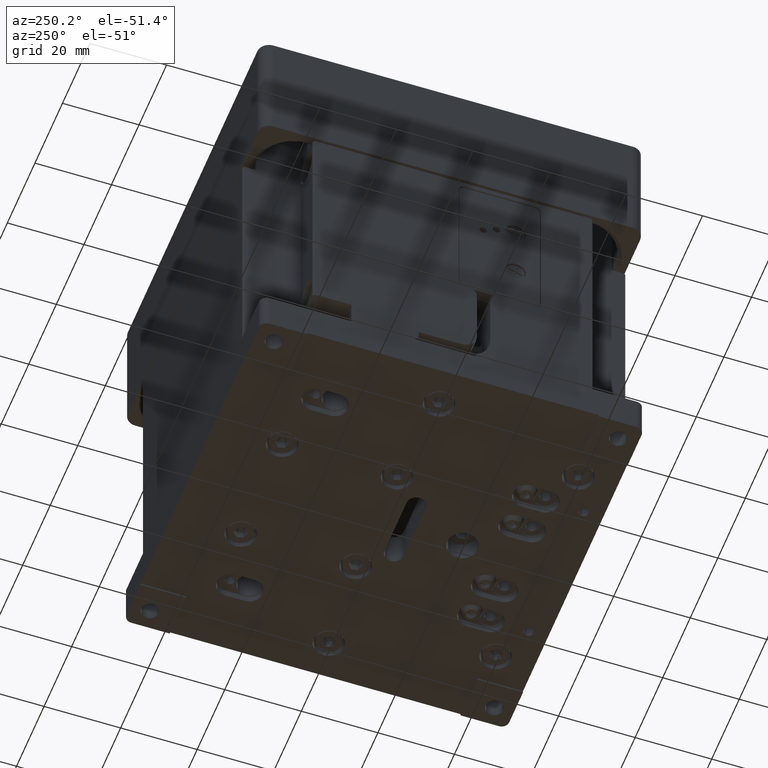
[diagram: clean part render]
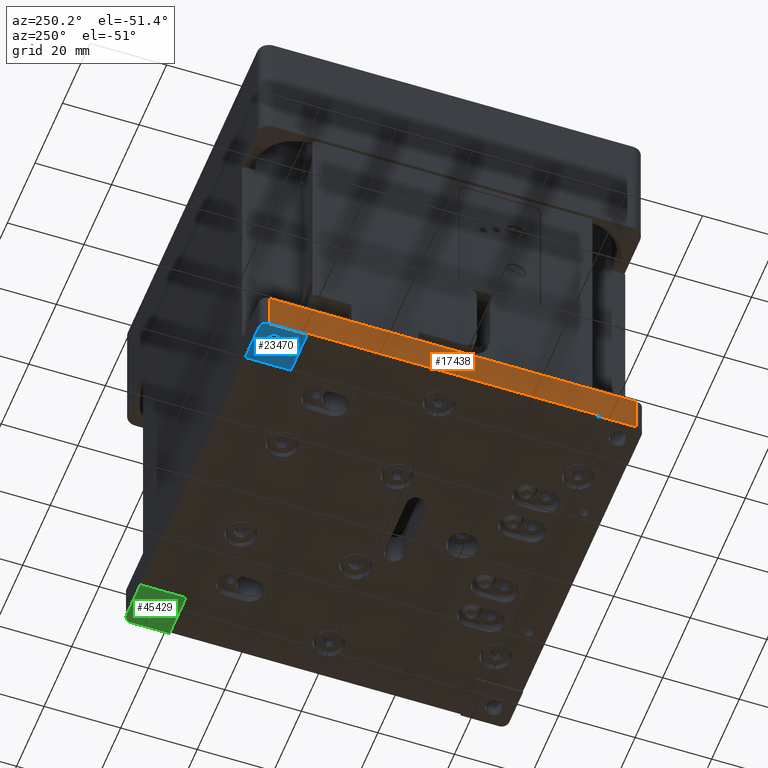
[diagram: same view with three faces highlighted in distinct colors, each labeled with its STEP entity id]
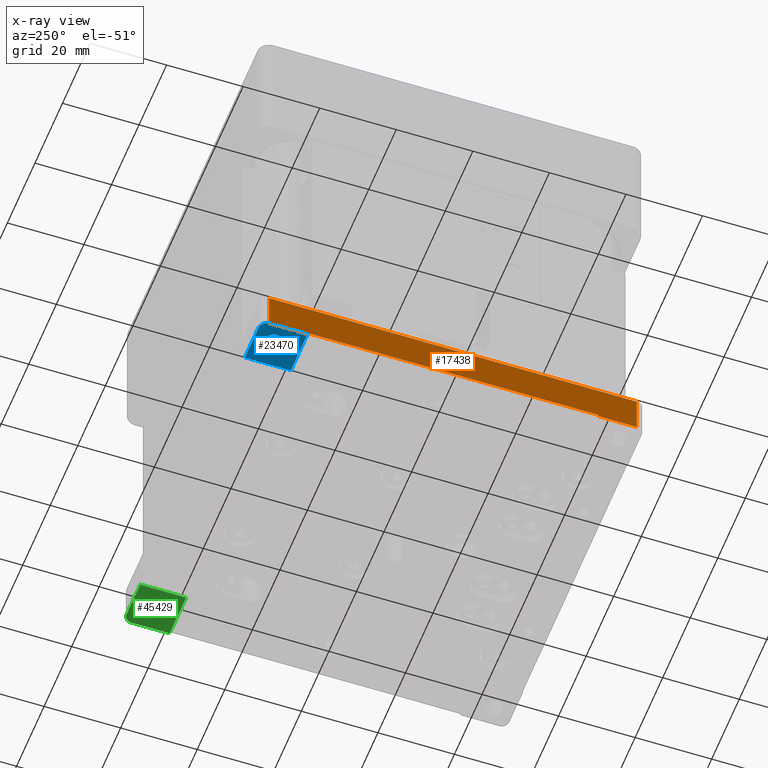
[diagram: x-ray of the same camera — body ghosted, the three highlighted faces saturated]
A machine part, auxiliary view with three faces highlighted in distinct colors.
The next image is the same camera in x-ray (body ghosted, the three faces saturated) — at least one of them is partly hidden behind the body in this view.
Their STEP definitions:

[orange] entity #17438 — the highlighted planar face has unit normal (-1, -0, 0).
#1926 = CARTESIAN_POINT ( 'NONE',  ( -49.99999999999998579, -38.00000000000000711, -9.500000000000000000 ) ) ;
#1951 = VECTOR ( 'NONE', #21273, 1000.000000000000000 ) ;
#2547 = VERTEX_POINT ( 'NONE', #22492 ) ;
#2884 = EDGE_CURVE ( 'NONE', #30680, #13785, #13054, .T. ) ;
#3493 = CARTESIAN_POINT ( 'NONE',  ( -50.00000000000000711, 38.00000000000000711, -10.00000000000000000 ) ) ;
#5359 = CARTESIAN_POINT ( 'NONE',  ( -50.00000000000000000, 50.00000000000000000, -9.500000000000000000 ) ) ;
#5364 = EDGE_CURVE ( 'NONE', #36289, #27895, #12210, .T. ) ;
#6043 = LINE ( 'NONE', #31211, #8949 ) ;
#6685 = VECTOR ( 'NONE', #24575, 1000.000000000000000 ) ;
#6935 = CARTESIAN_POINT ( 'NONE',  ( -50.00000000000000000, 0.000000000000000000, 0.000000000000000000 ) ) ;
#7404 = ORIENTED_EDGE ( 'NONE', *, *, #10058, .T. ) ;
#8069 = LINE ( 'NONE', #32315, #45471 ) ;
#8892 = EDGE_CURVE ( 'NONE', #30680, #36289, #13919, .T. ) ;
#8949 = VECTOR ( 'NONE', #16864, 1000.000000000000000 ) ;
#9454 = ORIENTED_EDGE ( 'NONE', *, *, #38707, .T. ) ;
#10058 = EDGE_CURVE ( 'NONE', #2547, #18191, #8069, .T. ) ;
#10232 = CARTESIAN_POINT ( 'NONE',  ( -49.99999999999999289, 38.00000000000000711, -10.00000000000000000 ) ) ;
#10870 = DIRECTION ( 'NONE',  ( -0.000000000000000000, -0.000000000000000000, -1.000000000000000000 ) ) ;
#11513 = CARTESIAN_POINT ( 'NONE',  ( -50.00000000000000000, 50.00000000000000000, -10.00000000000000000 ) ) ;
#12046 = VECTOR ( 'NONE', #44720, 1000.000000000000000 ) ;
#12210 = LINE ( 'NONE', #11513, #12046 ) ;
#12359 = EDGE_CURVE ( 'NONE', #13785, #21955, #33608, .T. ) ;
#13054 = LINE ( 'NONE', #6935, #1951 ) ;
#13084 = EDGE_LOOP ( 'NONE', ( #25176, #9454, #7404, #33421, #18010, #16021, #39313, #17874 ) ) ;
#13708 = CARTESIAN_POINT ( 'NONE',  ( -50.00000000000000000, 48.00000000000000000, -9.500000000000000000 ) ) ;
#13785 = VERTEX_POINT ( 'NONE', #26002 ) ;
#13919 = LINE ( 'NONE', #13708, #37195 ) ;
#16021 = ORIENTED_EDGE ( 'NONE', *, *, #12359, .F. ) ;
#16827 = CARTESIAN_POINT ( 'NONE',  ( -49.99999999999998579, -47.99999999999997158, -9.500000000000000000 ) ) ;
#16864 = DIRECTION ( 'NONE',  ( 0.000000000000000000, -0.000000000000000000, -1.000000000000000000 ) ) ;
#17438 = ADVANCED_FACE ( 'NONE', ( #27230 ), #34061, .T. ) ;
#17874 = ORIENTED_EDGE ( 'NONE', *, *, #8892, .T. ) ;
#18010 = ORIENTED_EDGE ( 'NONE', *, *, #32484, .T. ) ;
#18191 = VERTEX_POINT ( 'NONE', #1926 ) ;
#19926 = DIRECTION ( 'NONE',  ( -1.000000000000000000, -1.387778780781445922E-16, 0.000000000000000000 ) ) ;
#20400 = DIRECTION ( 'NONE',  ( 1.387778780781445922E-16, -1.000000000000000000, 0.000000000000000000 ) ) ;
#21273 = DIRECTION ( 'NONE',  ( -0.000000000000000000, -1.000000000000000000, 0.000000000000000000 ) ) ;
#21742 = CARTESIAN_POINT ( 'NONE',  ( -49.99999999999998579, -47.99999999999997868, -10.00000000000000000 ) ) ;
#21955 = VERTEX_POINT ( 'NONE', #21742 ) ;
#22308 = DIRECTION ( 'NONE',  ( -0.000000000000000000, -0.000000000000000000, -1.000000000000000000 ) ) ;
#22492 = CARTESIAN_POINT ( 'NONE',  ( -50.00000000000000000, 38.00000000000000711, -9.500000000000000000 ) ) ;
#24575 = DIRECTION ( 'NONE',  ( 0.000000000000000000, -0.000000000000000000, 1.000000000000000000 ) ) ;
#25176 = ORIENTED_EDGE ( 'NONE', *, *, #5364, .T. ) ;
#25658 = LINE ( 'NONE', #29420, #30842 ) ;
#26002 = CARTESIAN_POINT ( 'NONE',  ( -49.99999999999999289, -47.99999999999997868, 0.000000000000000000 ) ) ;
#27230 = FACE_OUTER_BOUND ( 'NONE', #13084, .T. ) ;
#27895 = VERTEX_POINT ( 'NONE', #3493 ) ;
#29420 = CARTESIAN_POINT ( 'NONE',  ( -50.00000000000000000, 50.00000000000000000, -10.00000000000000000 ) ) ;
#29586 = CARTESIAN_POINT ( 'NONE',  ( -50.00000000000000000, 48.00000000000000000, -10.00000000000000000 ) ) ;
#29888 = CARTESIAN_POINT ( 'NONE',  ( -50.00000000000000000, 48.00000000000000000, 0.000000000000000000 ) ) ;
#30680 = VERTEX_POINT ( 'NONE', #29888 ) ;
#30842 = VECTOR ( 'NONE', #43813, 1000.000000000000000 ) ;
#31211 = CARTESIAN_POINT ( 'NONE',  ( -49.99999999999997868, -38.00000000000000711, -10.00000000000000000 ) ) ;
#31893 = LINE ( 'NONE', #10232, #6685 ) ;
#32315 = CARTESIAN_POINT ( 'NONE',  ( -50.00000000000000000, 50.00000000000000000, -9.500000000000000000 ) ) ;
#32484 = EDGE_CURVE ( 'NONE', #40293, #21955, #25658, .T. ) ;
#33421 = ORIENTED_EDGE ( 'NONE', *, *, #39956, .T. ) ;
#33608 = LINE ( 'NONE', #16827, #40813 ) ;
#34061 = PLANE ( 'NONE',  #39545 ) ;
#36289 = VERTEX_POINT ( 'NONE', #29586 ) ;
#36798 = DIRECTION ( 'NONE',  ( 1.387778780781445922E-16, -1.000000000000000000, 0.000000000000000000 ) ) ;
#37195 = VECTOR ( 'NONE', #10870, 1000.000000000000000 ) ;
#38003 = CARTESIAN_POINT ( 'NONE',  ( -49.99999999999998579, -38.00000000000000711, -10.00000000000000000 ) ) ;
#38707 = EDGE_CURVE ( 'NONE', #27895, #2547, #31893, .T. ) ;
#39313 = ORIENTED_EDGE ( 'NONE', *, *, #2884, .F. ) ;
#39545 = AXIS2_PLACEMENT_3D ( 'NONE', #5359, #19926, #20400 ) ;
#39956 = EDGE_CURVE ( 'NONE', #18191, #40293, #6043, .T. ) ;
#40293 = VERTEX_POINT ( 'NONE', #38003 ) ;
#40813 = VECTOR ( 'NONE', #22308, 1000.000000000000000 ) ;
#43813 = DIRECTION ( 'NONE',  ( 1.387778780781445922E-16, -1.000000000000000000, 0.000000000000000000 ) ) ;
#44720 = DIRECTION ( 'NONE',  ( 1.387778780781445922E-16, -1.000000000000000000, 0.000000000000000000 ) ) ;
#45471 = VECTOR ( 'NONE', #36798, 1000.000000000000000 ) ;

[blue] entity #23470 — the highlighted planar face has unit normal (0, 0, -1).
#475 = CIRCLE ( 'NONE', #37339, 2.000000000000001776 ) ;
#597 = AXIS2_PLACEMENT_3D ( 'NONE', #28100, #9313, #42270 ) ;
#2437 = ORIENTED_EDGE ( 'NONE', *, *, #21754, .T. ) ;
#2502 = ORIENTED_EDGE ( 'NONE', *, *, #5364, .F. ) ;
#3493 = CARTESIAN_POINT ( 'NONE',  ( -50.00000000000000711, 38.00000000000000711, -10.00000000000000000 ) ) ;
#4338 = PLANE ( 'NONE',  #30226 ) ;
#4391 = ORIENTED_EDGE ( 'NONE', *, *, #34781, .T. ) ;
#5364 = EDGE_CURVE ( 'NONE', #36289, #27895, #12210, .T. ) ;
#8398 = EDGE_LOOP ( 'NONE', ( #40904, #2437 ) ) ;
#8874 = AXIS2_PLACEMENT_3D ( 'NONE', #27906, #42297, #38737 ) ;
#8940 = CARTESIAN_POINT ( 'NONE',  ( -48.00000000000000000, 48.00000000000000000, -10.00000000000000000 ) ) ;
#9313 = DIRECTION ( 'NONE',  ( -0.000000000000000000, -0.000000000000000000, 1.000000000000000000 ) ) ;
#11513 = CARTESIAN_POINT ( 'NONE',  ( -50.00000000000000000, 50.00000000000000000, -10.00000000000000000 ) ) ;
#11597 = VERTEX_POINT ( 'NONE', #17208 ) ;
#11900 = EDGE_LOOP ( 'NONE', ( #27057, #37409, #4391, #20156, #2502 ) ) ;
#12046 = VECTOR ( 'NONE', #44720, 1000.000000000000000 ) ;
#12210 = LINE ( 'NONE', #11513, #12046 ) ;
#14348 = VECTOR ( 'NONE', #31719, 1000.000000000000000 ) ;
#17208 = CARTESIAN_POINT ( 'NONE',  ( -48.00000000000000000, 50.00000000000000000, -10.00000000000000000 ) ) ;
#17365 = LINE ( 'NONE', #17587, #14348 ) ;
#17587 = CARTESIAN_POINT ( 'NONE',  ( -50.00000000000000000, 50.00000000000000000, -10.00000000000000000 ) ) ;
#18697 = FACE_BOUND ( 'NONE', #8398, .T. ) ;
#18875 = CARTESIAN_POINT ( 'NONE',  ( -37.99999999999999289, 38.00000000000000711, -10.00000000000000000 ) ) ;
#20156 = ORIENTED_EDGE ( 'NONE', *, *, #45637, .T. ) ;
#20648 = VERTEX_POINT ( 'NONE', #25487 ) ;
#21582 = DIRECTION ( 'NONE',  ( -1.000000000000000000, 0.000000000000000000, -0.000000000000000000 ) ) ;
#21754 = EDGE_CURVE ( 'NONE', #36062, #23785, #46495, .T. ) ;
#22901 = EDGE_CURVE ( 'NONE', #20648, #11597, #17365, .T. ) ;
#23470 = ADVANCED_FACE ( 'NONE', ( #18697, #29278 ), #4338, .T. ) ;
#23785 = VERTEX_POINT ( 'NONE', #38897 ) ;
#23968 = DIRECTION ( 'NONE',  ( 0.000000000000000000, 0.000000000000000000, 1.000000000000000000 ) ) ;
#24754 = CARTESIAN_POINT ( 'NONE',  ( -37.99999999999999289, 0.000000000000000000, -10.00000000000000000 ) ) ;
#25487 = CARTESIAN_POINT ( 'NONE',  ( -37.99999999999999289, 50.00000000000000711, -10.00000000000000000 ) ) ;
#25755 = DIRECTION ( 'NONE',  ( 0.000000000000000000, 0.000000000000000000, -1.000000000000000000 ) ) ;
#26094 = DIRECTION ( 'NONE',  ( -0.000000000000000000, -1.000000000000000000, -0.000000000000000000 ) ) ;
#27057 = ORIENTED_EDGE ( 'NONE', *, *, #34080, .F. ) ;
#27895 = VERTEX_POINT ( 'NONE', #3493 ) ;
#27906 = CARTESIAN_POINT ( 'NONE',  ( -44.99999999999998579, 45.00000000000000711, -9.999999999999994671 ) ) ;
#28100 = CARTESIAN_POINT ( 'NONE',  ( -44.99999999999998579, 45.00000000000000711, -9.999999999999994671 ) ) ;
#28281 = LINE ( 'NONE', #24754, #38866 ) ;
#29278 = FACE_OUTER_BOUND ( 'NONE', #11900, .T. ) ;
#29586 = CARTESIAN_POINT ( 'NONE',  ( -50.00000000000000000, 48.00000000000000000, -10.00000000000000000 ) ) ;
#30226 = AXIS2_PLACEMENT_3D ( 'NONE', #40132, #25755, #36597 ) ;
#31719 = DIRECTION ( 'NONE',  ( -1.000000000000000000, -0.000000000000000000, 0.000000000000000000 ) ) ;
#34080 = EDGE_CURVE ( 'NONE', #11597, #36289, #475, .T. ) ;
#34781 = EDGE_CURVE ( 'NONE', #20648, #43622, #28281, .T. ) ;
#36062 = VERTEX_POINT ( 'NONE', #41187 ) ;
#36289 = VERTEX_POINT ( 'NONE', #29586 ) ;
#36597 = DIRECTION ( 'NONE',  ( -1.000000000000000000, 0.000000000000000000, -0.000000000000000000 ) ) ;
#37339 = AXIS2_PLACEMENT_3D ( 'NONE', #8940, #23968, #45224 ) ;
#37409 = ORIENTED_EDGE ( 'NONE', *, *, #22901, .F. ) ;
#37413 = VECTOR ( 'NONE', #21582, 1000.000000000000000 ) ;
#38737 = DIRECTION ( 'NONE',  ( 1.000000000000000000, 0.000000000000000000, 0.000000000000000000 ) ) ;
#38866 = VECTOR ( 'NONE', #26094, 1000.000000000000000 ) ;
#38897 = CARTESIAN_POINT ( 'NONE',  ( -42.74999999999998579, 45.00000000000000711, -9.999999999999994671 ) ) ;
#39723 = LINE ( 'NONE', #43040, #37413 ) ;
#40132 = CARTESIAN_POINT ( 'NONE',  ( 0.000000000000000000, 0.000000000000000000, -10.00000000000000000 ) ) ;
#40467 = CIRCLE ( 'NONE', #8874, 2.250000000000001776 ) ;
#40904 = ORIENTED_EDGE ( 'NONE', *, *, #46012, .T. ) ;
#41187 = CARTESIAN_POINT ( 'NONE',  ( -47.24999999999998579, 45.00000000000000711, -9.999999999999994671 ) ) ;
#42270 = DIRECTION ( 'NONE',  ( 1.000000000000000000, 0.000000000000000000, 0.000000000000000000 ) ) ;
#42297 = DIRECTION ( 'NONE',  ( -0.000000000000000000, -0.000000000000000000, 1.000000000000000000 ) ) ;
#43040 = CARTESIAN_POINT ( 'NONE',  ( 0.000000000000000000, 38.00000000000000711, -10.00000000000000000 ) ) ;
#43622 = VERTEX_POINT ( 'NONE', #18875 ) ;
#44720 = DIRECTION ( 'NONE',  ( 1.387778780781445922E-16, -1.000000000000000000, 0.000000000000000000 ) ) ;
#45224 = DIRECTION ( 'NONE',  ( 1.000000000000000000, 0.000000000000000000, 0.000000000000000000 ) ) ;
#45637 = EDGE_CURVE ( 'NONE', #43622, #27895, #39723, .T. ) ;
#46012 = EDGE_CURVE ( 'NONE', #23785, #36062, #40467, .T. ) ;
#46495 = CIRCLE ( 'NONE', #597, 2.250000000000001776 ) ;

[green] entity #45429 — the highlighted planar face has unit normal (0, 0, -1).
#74 = EDGE_CURVE ( 'NONE', #6405, #27904, #30762, .T. ) ;
#593 = VERTEX_POINT ( 'NONE', #7149 ) ;
#1192 = DIRECTION ( 'NONE',  ( -0.000000000000000000, -0.000000000000000000, 1.000000000000000000 ) ) ;
#1399 = AXIS2_PLACEMENT_3D ( 'NONE', #29932, #22656, #36327 ) ;
#2260 = DIRECTION ( 'NONE',  ( -0.000000000000000000, -0.000000000000000000, 1.000000000000000000 ) ) ;
#3229 = CARTESIAN_POINT ( 'NONE',  ( 37.99999999999999289, 0.000000000000000000, -10.00000000000000000 ) ) ;
#3431 = DIRECTION ( 'NONE',  ( -1.387778780781445922E-16, 1.000000000000000000, 0.000000000000000000 ) ) ;
#4280 = EDGE_CURVE ( 'NONE', #40080, #27904, #35483, .T. ) ;
#4782 = CARTESIAN_POINT ( 'NONE',  ( 49.99999999999998579, 38.00000000000000711, -10.00000000000000000 ) ) ;
#4970 = EDGE_CURVE ( 'NONE', #13849, #40669, #9875, .T. ) ;
#6143 = EDGE_CURVE ( 'NONE', #593, #6405, #19445, .T. ) ;
#6154 = EDGE_LOOP ( 'NONE', ( #33140, #13171 ) ) ;
#6405 = VERTEX_POINT ( 'NONE', #36951 ) ;
#7149 = CARTESIAN_POINT ( 'NONE',  ( 49.99999999999998579, 48.00000000000000000, -10.00000000000000000 ) ) ;
#7360 = CIRCLE ( 'NONE', #39690, 2.250000000000001776 ) ;
#9771 = ORIENTED_EDGE ( 'NONE', *, *, #4280, .T. ) ;
#9861 = CARTESIAN_POINT ( 'NONE',  ( 0.000000000000000000, 0.000000000000000000, -10.00000000000000000 ) ) ;
#9875 = CIRCLE ( 'NONE', #27894, 2.250000000000001776 ) ;
#9911 = DIRECTION ( 'NONE',  ( -1.000000000000000000, 0.000000000000000000, -0.000000000000000000 ) ) ;
#10294 = FACE_BOUND ( 'NONE', #6154, .T. ) ;
#10348 = CARTESIAN_POINT ( 'NONE',  ( 0.000000000000000000, 38.00000000000000711, -10.00000000000000000 ) ) ;
#11118 = CARTESIAN_POINT ( 'NONE',  ( 42.75000000000000711, 45.00000000000000711, -9.999999999999994671 ) ) ;
#13171 = ORIENTED_EDGE ( 'NONE', *, *, #14796, .T. ) ;
#13849 = VERTEX_POINT ( 'NONE', #33764 ) ;
#14247 = LINE ( 'NONE', #46086, #33589 ) ;
#14796 = EDGE_CURVE ( 'NONE', #40669, #13849, #7360, .T. ) ;
#15560 = DIRECTION ( 'NONE',  ( 1.000000000000000000, 0.000000000000000000, 0.000000000000000000 ) ) ;
#16014 = EDGE_LOOP ( 'NONE', ( #39691, #39772, #38073, #9771, #40180 ) ) ;
#16296 = VECTOR ( 'NONE', #9911, 1000.000000000000000 ) ;
#16695 = PLANE ( 'NONE',  #17088 ) ;
#17088 = AXIS2_PLACEMENT_3D ( 'NONE', #9861, #20664, #38342 ) ;
#19428 = VECTOR ( 'NONE', #28857, 1000.000000000000000 ) ;
#19445 = CIRCLE ( 'NONE', #1399, 2.000000000000001776 ) ;
#19504 = VERTEX_POINT ( 'NONE', #4782 ) ;
#20664 = DIRECTION ( 'NONE',  ( 0.000000000000000000, 0.000000000000000000, -1.000000000000000000 ) ) ;
#21874 = VECTOR ( 'NONE', #31010, 1000.000000000000000 ) ;
#22656 = DIRECTION ( 'NONE',  ( 0.000000000000000000, -0.000000000000000000, 1.000000000000000000 ) ) ;
#27894 = AXIS2_PLACEMENT_3D ( 'NONE', #44303, #1192, #15560 ) ;
#27904 = VERTEX_POINT ( 'NONE', #34825 ) ;
#28833 = CARTESIAN_POINT ( 'NONE',  ( 37.99999999999999289, 38.00000000000000711, -10.00000000000000000 ) ) ;
#28857 = DIRECTION ( 'NONE',  ( 0.000000000000000000, 1.000000000000000000, 0.000000000000000000 ) ) ;
#29932 = CARTESIAN_POINT ( 'NONE',  ( 47.99999999999998579, 48.00000000000000000, -10.00000000000000000 ) ) ;
#30762 = LINE ( 'NONE', #45174, #21874 ) ;
#31010 = DIRECTION ( 'NONE',  ( -1.000000000000000000, -0.000000000000000000, 0.000000000000000000 ) ) ;
#31040 = FACE_OUTER_BOUND ( 'NONE', #16014, .T. ) ;
#33140 = ORIENTED_EDGE ( 'NONE', *, *, #4970, .T. ) ;
#33589 = VECTOR ( 'NONE', #3431, 1000.000000000000000 ) ;
#33764 = CARTESIAN_POINT ( 'NONE',  ( 47.25000000000001421, 45.00000000000000711, -9.999999999999994671 ) ) ;
#33806 = CARTESIAN_POINT ( 'NONE',  ( 45.00000000000001421, 45.00000000000000711, -9.999999999999994671 ) ) ;
#34624 = EDGE_CURVE ( 'NONE', #19504, #593, #14247, .T. ) ;
#34825 = CARTESIAN_POINT ( 'NONE',  ( 37.99999999999999289, 50.00000000000000711, -10.00000000000000000 ) ) ;
#35483 = LINE ( 'NONE', #3229, #19428 ) ;
#36327 = DIRECTION ( 'NONE',  ( 1.000000000000000000, 0.000000000000000000, 0.000000000000000000 ) ) ;
#36951 = CARTESIAN_POINT ( 'NONE',  ( 47.99999999999997868, 50.00000000000000000, -10.00000000000000000 ) ) ;
#38073 = ORIENTED_EDGE ( 'NONE', *, *, #44965, .T. ) ;
#38342 = DIRECTION ( 'NONE',  ( -1.000000000000000000, 0.000000000000000000, -0.000000000000000000 ) ) ;
#39690 = AXIS2_PLACEMENT_3D ( 'NONE', #33806, #2260, #44439 ) ;
#39691 = ORIENTED_EDGE ( 'NONE', *, *, #6143, .F. ) ;
#39772 = ORIENTED_EDGE ( 'NONE', *, *, #34624, .F. ) ;
#40080 = VERTEX_POINT ( 'NONE', #28833 ) ;
#40180 = ORIENTED_EDGE ( 'NONE', *, *, #74, .F. ) ;
#40669 = VERTEX_POINT ( 'NONE', #11118 ) ;
#41709 = LINE ( 'NONE', #10348, #16296 ) ;
#44303 = CARTESIAN_POINT ( 'NONE',  ( 45.00000000000001421, 45.00000000000000711, -9.999999999999994671 ) ) ;
#44439 = DIRECTION ( 'NONE',  ( 1.000000000000000000, 0.000000000000000000, 0.000000000000000000 ) ) ;
#44965 = EDGE_CURVE ( 'NONE', #19504, #40080, #41709, .T. ) ;
#45174 = CARTESIAN_POINT ( 'NONE',  ( -50.00000000000000000, 50.00000000000000000, -10.00000000000000000 ) ) ;
#45429 = ADVANCED_FACE ( 'NONE', ( #10294, #31040 ), #16695, .T. ) ;
#46086 = CARTESIAN_POINT ( 'NONE',  ( 49.99999999999998579, 50.00000000000000000, -10.00000000000000000 ) ) ;